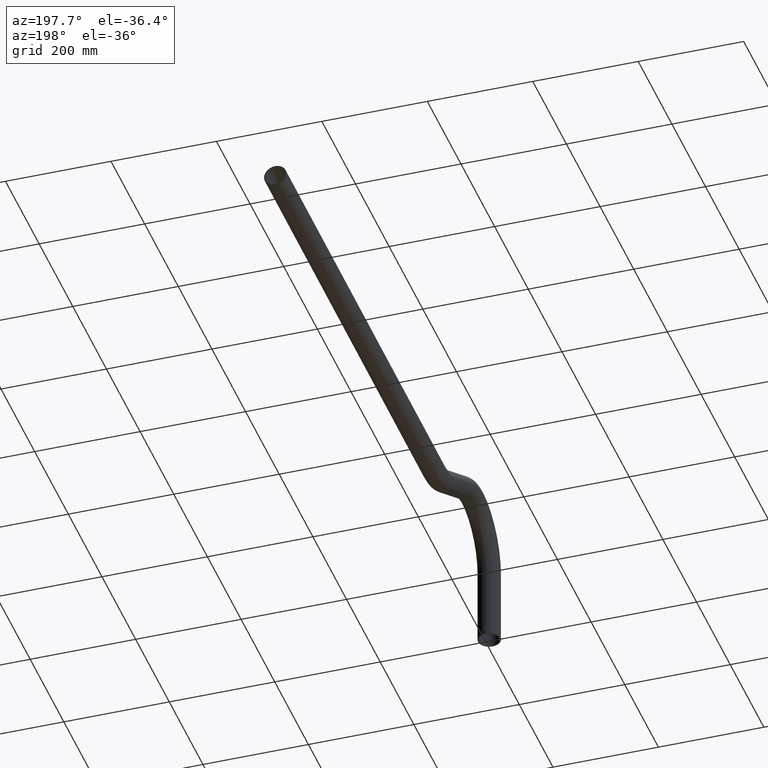
[diagram: clean part render]
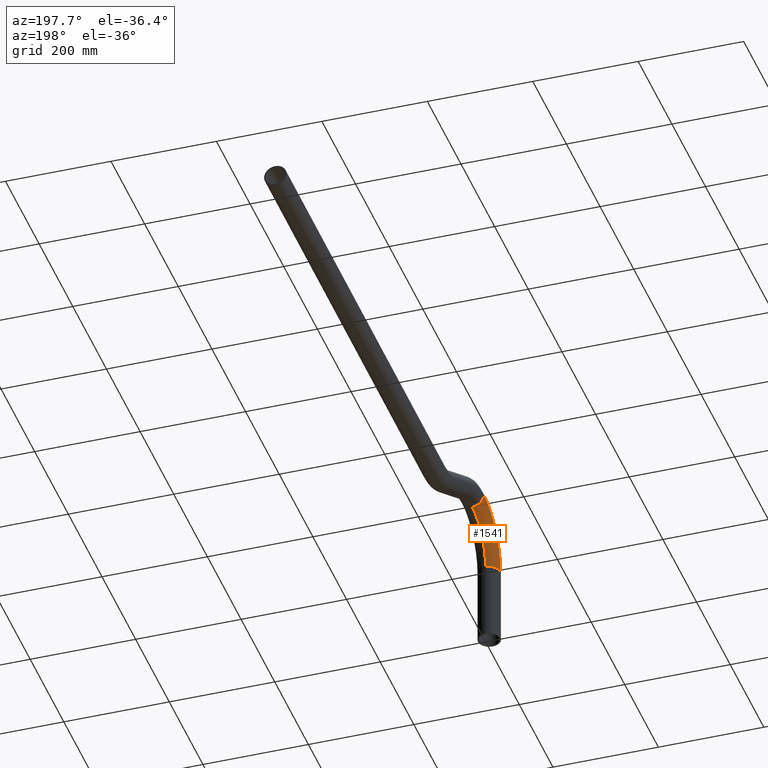
[diagram: same view with one face highlighted and labeled with its STEP entity id]
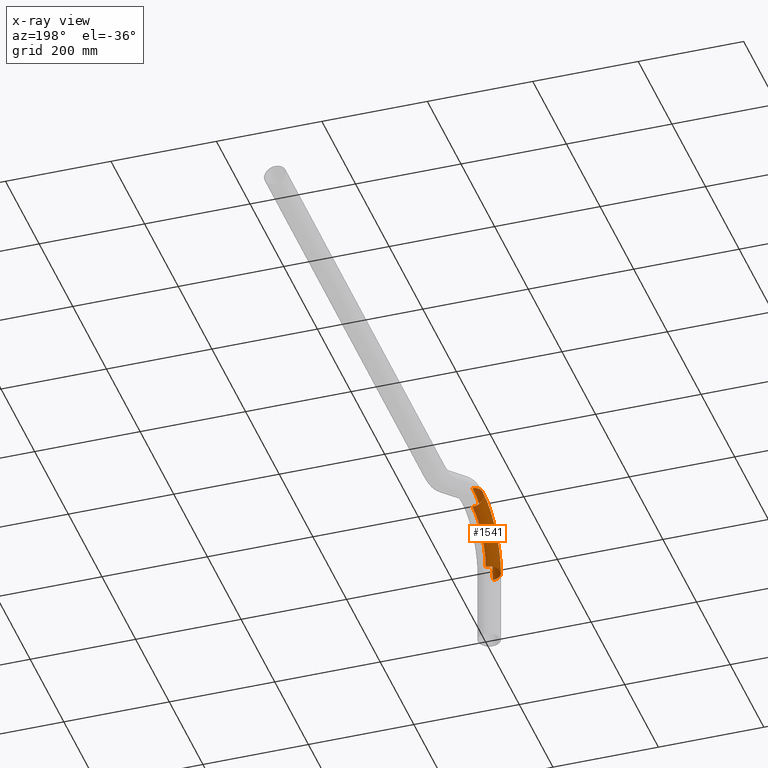
[diagram: x-ray of the same camera — body ghosted, the highlighted face saturated]
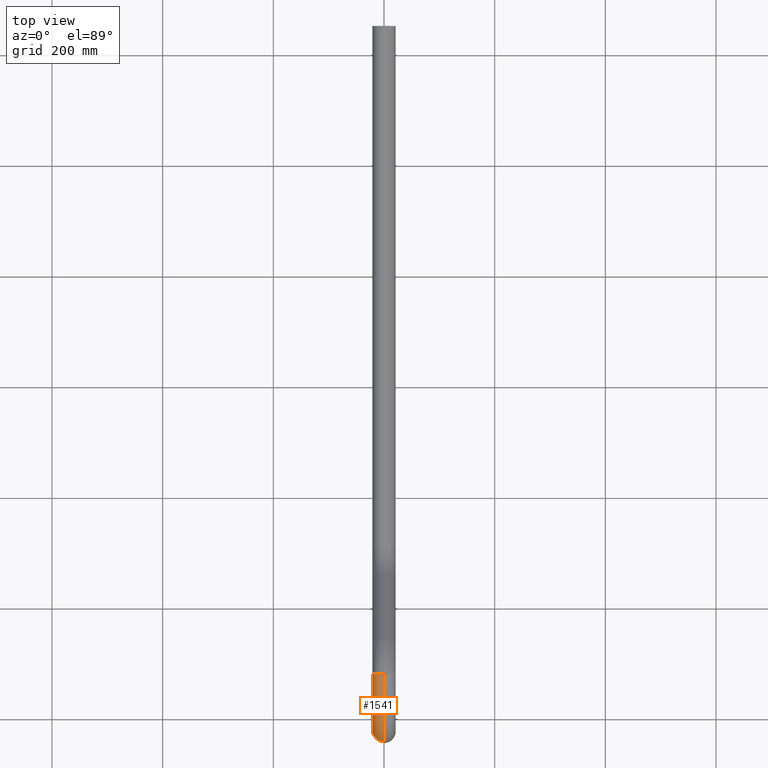
[diagram: same view with one face highlighted and labeled with its STEP entity id]
A machine part, auxiliary view. The second image highlights one B-rep face of the part: STEP entity #1541.
The next image is the same camera in x-ray: the body ghosted, the highlighted face saturated — about 0% of this face is hidden behind the body in this view.
A second angle (top view) of the same face is appended — the face is thin or edge-on in the first view.
In plain terms, the highlighted toroidal blend (fillet) surface has major radius 100 mm and minor (blend) radius 21.2 mm.
Its self-contained STEP definition (entity closure, byte-faithful):
#468 = CARTESIAN_POINT ( 'NONE',  ( 0.0000000000000000000, 78.79999999999957100, 153.1999999999999900 ) ) ;
#548 = VERTEX_POINT ( 'NONE', #2926 ) ;
#569 = ORIENTED_EDGE ( 'NONE', *, *, #6090, .T. ) ;
#590 = VERTEX_POINT ( 'NONE', #468 ) ;
#1087 = DIRECTION ( 'NONE',  ( 0.0000000000000000000, 0.0000000000000000000, 1.000000000000000000 ) ) ;
#1121 = EDGE_LOOP ( 'NONE', ( #3934, #6181, #569, #8225 ) ) ;
#1258 = CARTESIAN_POINT ( 'NONE',  ( 0.0000000000000000000, 78.79999999999957100, 174.4000000000000100 ) ) ;
#1291 = TOROIDAL_SURFACE ( 'NONE', #1685, 99.99999999999997200, 21.19999999999999900 ) ;
#1361 = AXIS2_PLACEMENT_3D ( 'NONE', #10081, #5572, #9961 ) ;
#1541 = ADVANCED_FACE ( 'NONE', ( #2525 ), #1291, .T. ) ;
#1685 = AXIS2_PLACEMENT_3D ( 'NONE', #8105, #7123, #1087 ) ;
#1719 = DIRECTION ( 'NONE',  ( 0.0000000000000000000, -1.000000000000000000, 0.0000000000000000000 ) ) ;
#1940 = CARTESIAN_POINT ( 'NONE',  ( 2.596251214192388800E-015, -42.40000000000041800, 74.39999999999996300 ) ) ;
#2221 = CIRCLE ( 'NONE', #6005, 21.19999999999999600 ) ;
#2484 = DIRECTION ( 'NONE',  ( 0.0000000000000000000, 0.0000000000000000000, 1.000000000000000000 ) ) ;
#2525 = FACE_OUTER_BOUND ( 'NONE', #1121, .T. ) ;
#2926 = CARTESIAN_POINT ( 'NONE',  ( 0.0000000000000000000, -4.163336342344337000E-013, 74.39999999999996300 ) ) ;
#3119 = CARTESIAN_POINT ( 'NONE',  ( 0.0000000000000000000, 78.79999999999957100, 195.5999999999999900 ) ) ;
#3376 = CARTESIAN_POINT ( 'NONE',  ( 2.596251214192388800E-015, 78.79999999999957100, 74.40000000000002000 ) ) ;
#3473 = DIRECTION ( 'NONE',  ( -1.000000000000000000, -0.0000000000000000000, 0.0000000000000000000 ) ) ;
#3597 = EDGE_CURVE ( 'NONE', #548, #590, #10049, .T. ) ;
#3934 = ORIENTED_EDGE ( 'NONE', *, *, #7854, .T. ) ;
#4584 = DIRECTION ( 'NONE',  ( 0.0000000000000000000, 0.0000000000000000000, -1.000000000000000000 ) ) ;
#4745 = AXIS2_PLACEMENT_3D ( 'NONE', #9714, #3473, #5312 ) ;
#5312 = DIRECTION ( 'NONE',  ( 0.0000000000000000000, 0.0000000000000000000, 1.000000000000000000 ) ) ;
#5572 = DIRECTION ( 'NONE',  ( 0.0000000000000000000, 0.0000000000000000000, 1.000000000000000000 ) ) ;
#6005 = AXIS2_PLACEMENT_3D ( 'NONE', #1258, #1719, #4584 ) ;
#6090 = EDGE_CURVE ( 'NONE', #9902, #590, #2221, .T. ) ;
#6181 = ORIENTED_EDGE ( 'NONE', *, *, #7999, .T. ) ;
#7123 = DIRECTION ( 'NONE',  ( -1.000000000000000000, -0.0000000000000000000, 0.0000000000000000000 ) ) ;
#7854 = EDGE_CURVE ( 'NONE', #548, #11172, #10827, .T. ) ;
#7999 = EDGE_CURVE ( 'NONE', #11172, #9902, #10416, .T. ) ;
#8105 = CARTESIAN_POINT ( 'NONE',  ( 0.0000000000000000000, 78.79999999999957100, 74.40000000000002000 ) ) ;
#8225 = ORIENTED_EDGE ( 'NONE', *, *, #3597, .F. ) ;
#8767 = DIRECTION ( 'NONE',  ( -1.000000000000000000, -0.0000000000000000000, 0.0000000000000000000 ) ) ;
#9714 = CARTESIAN_POINT ( 'NONE',  ( 0.0000000000000000000, 78.79999999999957100, 74.40000000000002000 ) ) ;
#9902 = VERTEX_POINT ( 'NONE', #3119 ) ;
#9961 = DIRECTION ( 'NONE',  ( 1.000000000000000000, 0.0000000000000000000, 0.0000000000000000000 ) ) ;
#10049 = CIRCLE ( 'NONE', #10237, 78.79999999999998300 ) ;
#10081 = CARTESIAN_POINT ( 'NONE',  ( 0.0000000000000000000, -21.20000000000041500, 74.39999999999996300 ) ) ;
#10237 = AXIS2_PLACEMENT_3D ( 'NONE', #3376, #8767, #2484 ) ;
#10416 = CIRCLE ( 'NONE', #4745, 121.1999999999999700 ) ;
#10827 = CIRCLE ( 'NONE', #1361, 21.19999999999999900 ) ;
#11172 = VERTEX_POINT ( 'NONE', #1940 ) ;